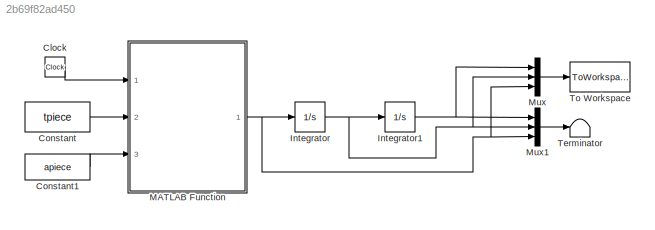
MODEL slx_2b69f82ad450
KIND model
CONFIG AbsTol = auto
CONFIG EnableMultiTasking = off
CONFIG FixedStep = 0.01
CONFIG MaxStep = auto
CONFIG MinStep = auto
CONFIG RelTol = 1e-3
CONFIG SampleTimeConstraint = Unconstrained
CONFIG Solver = ode4
CONFIG SolverName = ode4
CONFIG StartTime = 0.0
CONFIG StopTime = tf_
BLOCK [Clock] Clock
BLOCK [Constant] Constant
  Value = tpiece
BLOCK [Constant] Constant1
  Value = apiece
BLOCK [Integrator] Integrator
  InitialCondition = v0_
  Ports = [1, 1]
BLOCK [Integrator] Integrator1
  InitialCondition = x0_
  Ports = [1, 1]
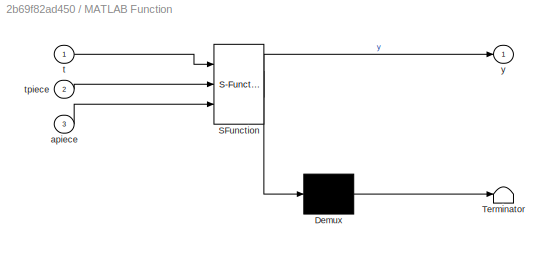
BLOCK [SubSystem] MATLAB Function
  ErrorFcn = Stateflow.Translate.translate
  PermitHierarchicalResolution = ExplicitOnly
  Ports = [3, 1]
  RequestExecContextInheritance = off
  SFBlockType = MATLAB Function
  TreatAsAtomicUnit = on
  Variant = off
BLOCK [Demux] MATLAB Function/ Demux 
  Outputs = 1
  Ports = [1, 1]
BLOCK [S-Function] MATLAB Function/ SFunction 
  EnableBusSupport = on
  FunctionName = sf_sfun
  PortCounts = [3 2]
  Ports = [3, 2]
  SFcnIsStateOwnerBlock = off
  SFunctionDeploymentMode = off
  Tag = Stateflow S-Function simMinTimeTraj 2
BLOCK [Terminator] MATLAB Function/ Terminator 
BLOCK [Inport] MATLAB Function/apiece
  IconDisplay = Port number
  Port = 3
BLOCK [Inport] MATLAB Function/t
  IconDisplay = Port number
BLOCK [Inport] MATLAB Function/tpiece
  IconDisplay = Port number
  Port = 2
BLOCK [Outport] MATLAB Function/y
  IconDisplay = Port number
BLOCK [Mux] Mux
  DisplayOption = bar
  Inputs = 3
  Ports = [3, 1]
BLOCK [Mux] Mux1
  DisplayOption = bar
  Inputs = 3
  Ports = [3, 1]
BLOCK [Terminator] Terminator
BLOCK [ToWorkspace] To Workspace
  FixptAsFi = on
  MaxDataPoints = inf
  Ports = [1]
  SampleTime = -1
  Save2DSignal = 3-D array (concatenate along third dimension)
  SaveFormat = Timeseries
  VariableName = traj
LINE Clock:1 -> MATLAB Function:1
LINE Constant1:1 -> MATLAB Function:3
LINE Constant:1 -> MATLAB Function:2
NET Integrator1:1 -> Mux1:1, Mux:1
NET Integrator:1 -> Integrator1:1, Mux1:2, Mux:2
NET MATLAB Function:1 -> Integrator:1, Mux1:3, Mux:3
LINE Mux1:1 -> Terminator:1
LINE Mux:1 -> To Workspace:1
note: NET lines group one-source signal fan-out (src -> all destinations, sorted); 1:1 wires keep LINE
CHART MATLAB Function states=1 transitions=1
  STATE_LABEL 'eML_blk_kernel()'
  STATE_LABEL 'SCRIPT:\nfunction y = fcn(t,tpiece,apiece)\n\nfor k=2:length(tpiece)\n    if and(t <= tpiece(k), t >= tpiece(k-1))\n        t01 = tpiece(k) - tpiece(k-1);\n        t0t = t - tpiece(k-1);\n        u = apiece(k-1) + (apiece(k) - apiece(k-1))*t0t/t01;\n        break;\n    else\n        u = 0;\n    end\nend\n\ny = u;\n\nend'
